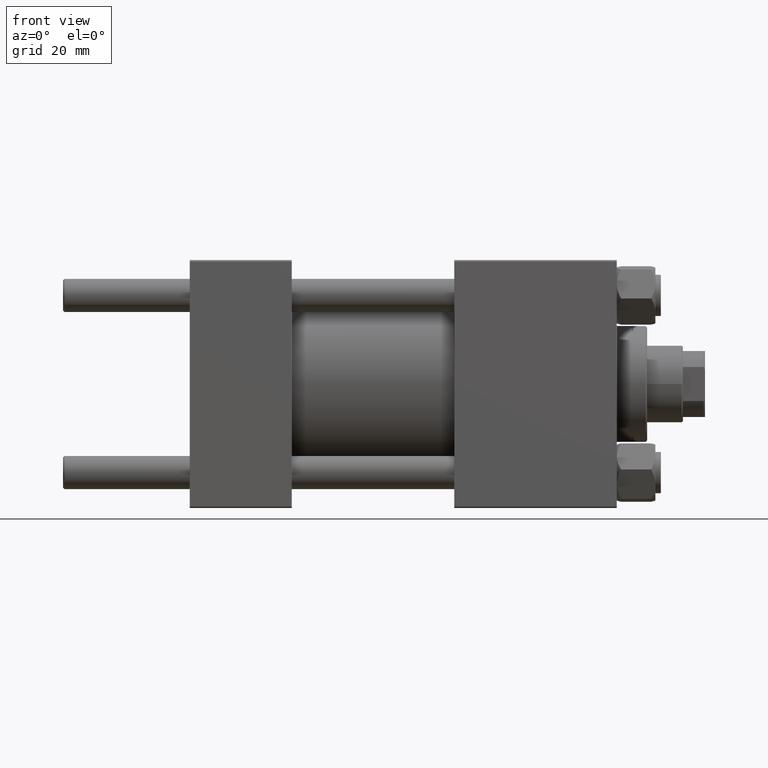
[diagram: clean part render]
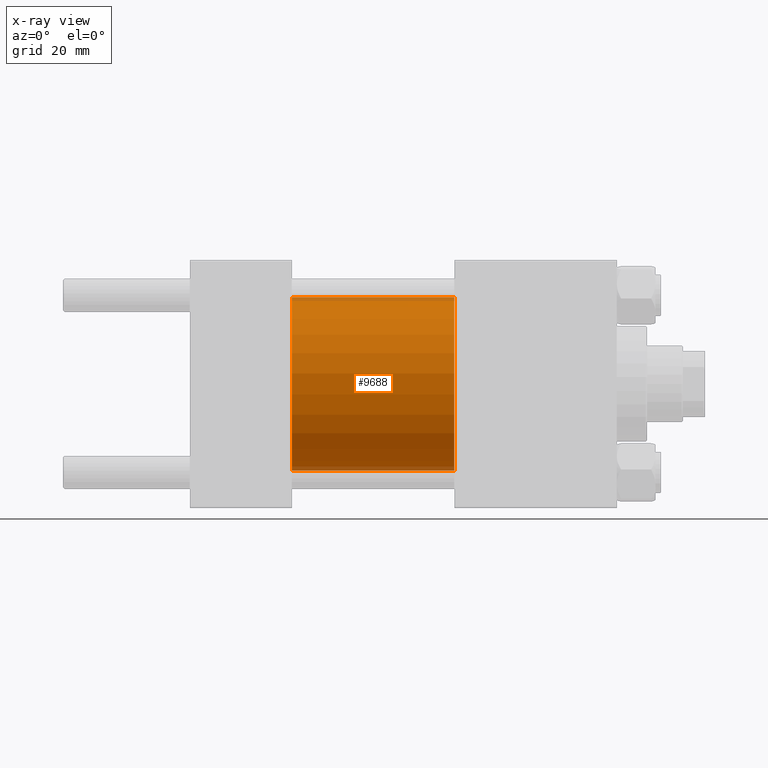
[diagram: x-ray — body ghosted, one internal face saturated and labeled with its STEP entity id]
A machine part, front view, then the same camera in x-ray: the body is ghosted and one INTERNAL B-rep face — a face not visible from any outside direction — is saturated and labeled: STEP entity #9688.
In plain terms, the highlighted cylindrical surface (partial cylindrical patch) has radius 31.5 mm, axis along (-1, -0, -0).
Its self-contained STEP definition (entity closure, byte-faithful):
#57 = CARTESIAN_POINT ( 'NONE',  ( 37.00000000000000000, 0.000000000000000000, 0.000000000000000000 ) ) ;
#210 = AXIS2_PLACEMENT_3D ( 'NONE', #42087, #22892, #7471 ) ;
#421 = ORIENTED_EDGE ( 'NONE', *, *, #34408, .T. ) ;
#569 = ORIENTED_EDGE ( 'NONE', *, *, #21164, .T. ) ;
#3322 = CARTESIAN_POINT ( 'NONE',  ( 96.00000000000000000, 3.857637417314162689E-15, -31.50000000000000000 ) ) ;
#7097 = LINE ( 'NONE', #3322, #16542 ) ;
#7261 = VERTEX_POINT ( 'NONE', #26150 ) ;
#7272 = CIRCLE ( 'NONE', #46019, 31.50000000000000000 ) ;
#7471 = DIRECTION ( 'NONE',  ( 0.000000000000000000, 0.000000000000000000, 1.000000000000000000 ) ) ;
#9688 = ADVANCED_FACE ( 'NONE', ( #19574 ), #46129, .F. ) ;
#9826 = DIRECTION ( 'NONE',  ( 0.000000000000000000, 0.000000000000000000, -1.000000000000000000 ) ) ;
#13460 = EDGE_LOOP ( 'NONE', ( #421, #569, #31181, #29683 ) ) ;
#14793 = EDGE_CURVE ( 'NONE', #27948, #33482, #14865, .T. ) ;
#14865 = LINE ( 'NONE', #29527, #36685 ) ;
#16063 = VERTEX_POINT ( 'NONE', #17702 ) ;
#16542 = VECTOR ( 'NONE', #18449, 1000.000000000000000 ) ;
#17702 = CARTESIAN_POINT ( 'NONE',  ( 37.00000000000000000, 3.857637417314162689E-15, -31.50000000000000000 ) ) ;
#18449 = DIRECTION ( 'NONE',  ( -1.000000000000000000, -0.000000000000000000, -0.000000000000000000 ) ) ;
#19574 = FACE_OUTER_BOUND ( 'NONE', #13460, .T. ) ;
#20641 = CARTESIAN_POINT ( 'NONE',  ( 37.00000000000000000, 0.000000000000000000, 31.50000000000000000 ) ) ;
#21164 = EDGE_CURVE ( 'NONE', #7261, #16063, #7097, .T. ) ;
#22782 = DIRECTION ( 'NONE',  ( 0.000000000000000000, 0.000000000000000000, -1.000000000000000000 ) ) ;
#22892 = DIRECTION ( 'NONE',  ( -1.000000000000000000, -0.000000000000000000, -0.000000000000000000 ) ) ;
#25492 = CARTESIAN_POINT ( 'NONE',  ( 96.00000000000000000, 0.000000000000000000, 0.000000000000000000 ) ) ;
#26150 = CARTESIAN_POINT ( 'NONE',  ( 96.00000000000000000, 3.857637417314162689E-15, -31.50000000000000000 ) ) ;
#27325 = AXIS2_PLACEMENT_3D ( 'NONE', #25492, #40902, #9826 ) ;
#27948 = VERTEX_POINT ( 'NONE', #43880 ) ;
#29527 = CARTESIAN_POINT ( 'NONE',  ( 96.00000000000000000, 0.000000000000000000, 31.50000000000000000 ) ) ;
#29683 = ORIENTED_EDGE ( 'NONE', *, *, #14793, .F. ) ;
#30023 = DIRECTION ( 'NONE',  ( -1.000000000000000000, -0.000000000000000000, -0.000000000000000000 ) ) ;
#30361 = DIRECTION ( 'NONE',  ( 1.000000000000000000, 0.000000000000000000, 0.000000000000000000 ) ) ;
#31181 = ORIENTED_EDGE ( 'NONE', *, *, #41986, .F. ) ;
#33482 = VERTEX_POINT ( 'NONE', #20641 ) ;
#34408 = EDGE_CURVE ( 'NONE', #27948, #7261, #49127, .T. ) ;
#36685 = VECTOR ( 'NONE', #30023, 1000.000000000000000 ) ;
#40902 = DIRECTION ( 'NONE',  ( 1.000000000000000000, 0.000000000000000000, 0.000000000000000000 ) ) ;
#41986 = EDGE_CURVE ( 'NONE', #33482, #16063, #7272, .T. ) ;
#42087 = CARTESIAN_POINT ( 'NONE',  ( 96.00000000000000000, 0.000000000000000000, 0.000000000000000000 ) ) ;
#43880 = CARTESIAN_POINT ( 'NONE',  ( 96.00000000000000000, 0.000000000000000000, 31.50000000000000000 ) ) ;
#46019 = AXIS2_PLACEMENT_3D ( 'NONE', #57, #30361, #22782 ) ;
#46129 = CYLINDRICAL_SURFACE ( 'NONE', #210, 31.50000000000000000 ) ;
#49127 = CIRCLE ( 'NONE', #27325, 31.50000000000000000 ) ;